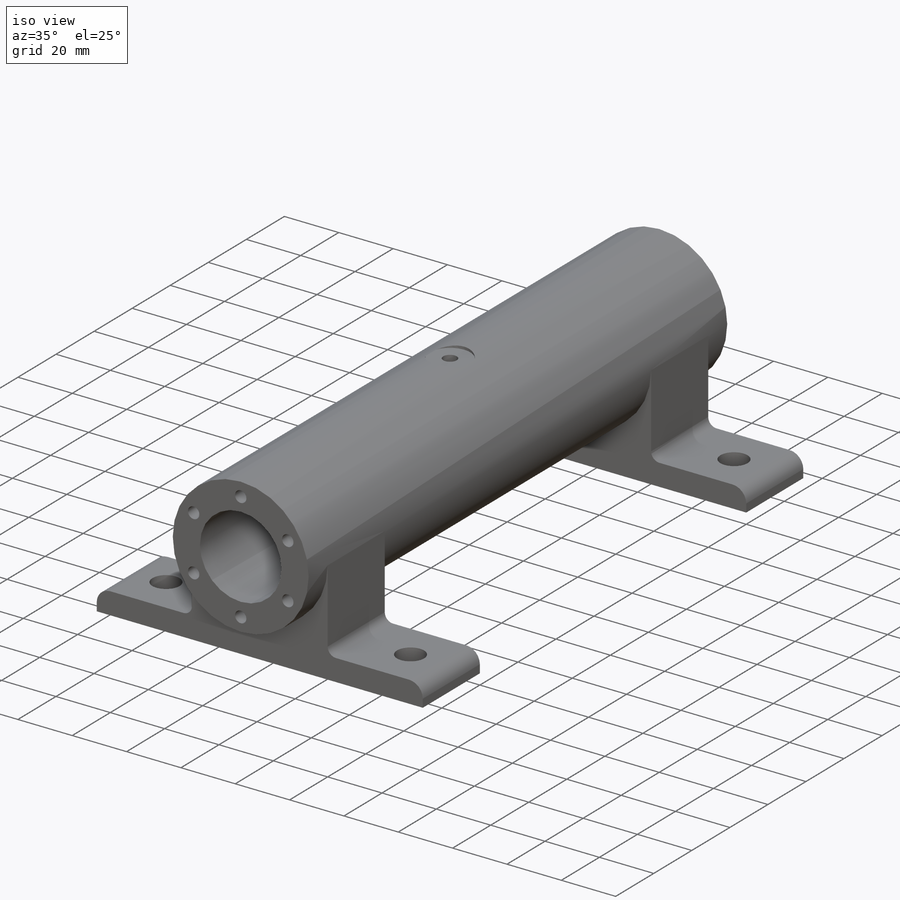
[diagram: iso view]
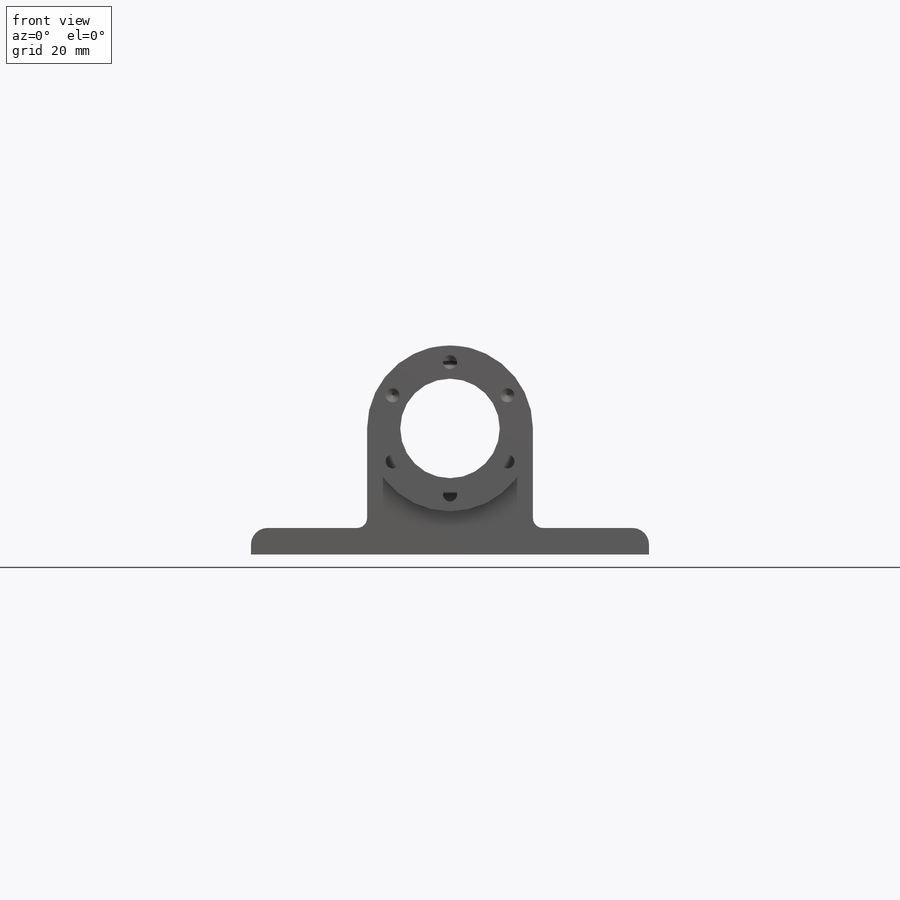
[diagram: front view]
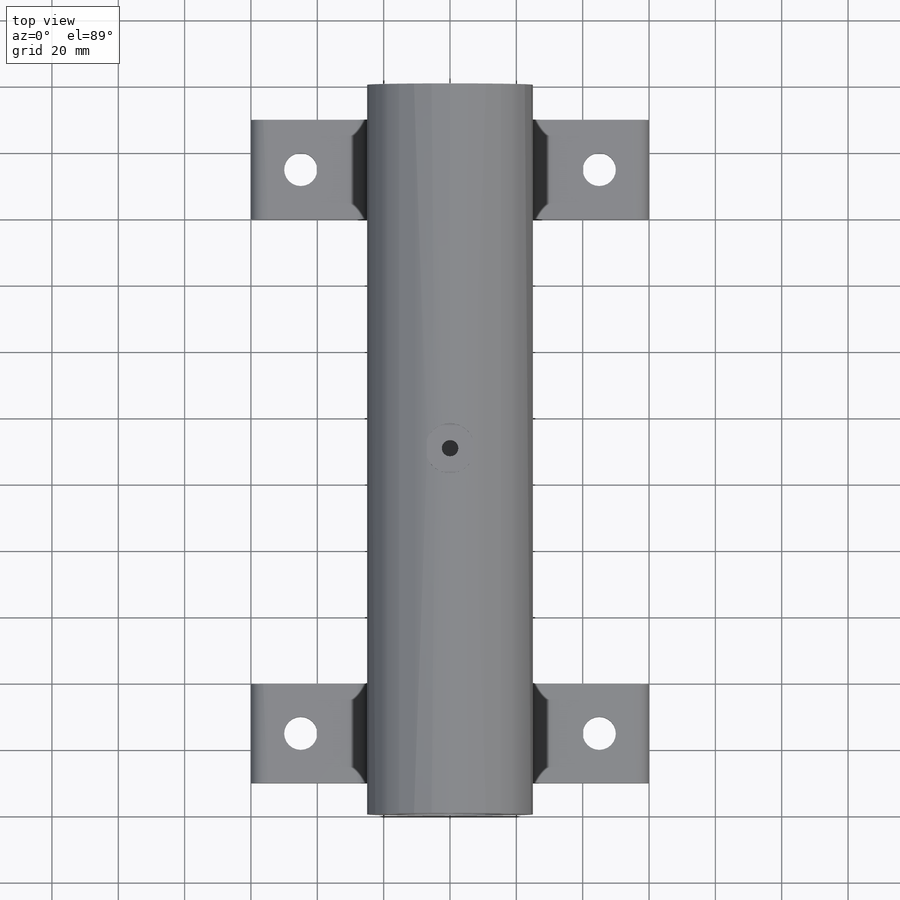
[diagram: top view]
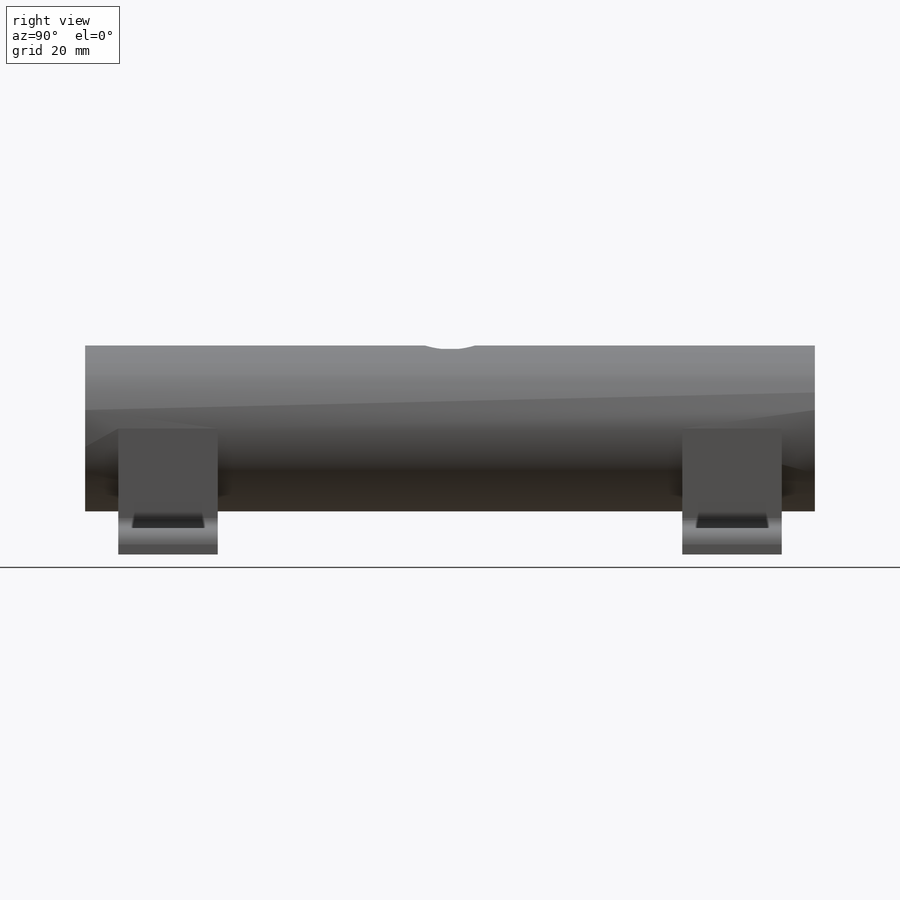
[diagram: right view]
SOLIDWORKS PART (.sldprt)
format: sldprt  version: not decoded by parser v0  size: 519,680 bytes
history: native  units: mm
features: sketch x11, mirror x4, hole x3, cut_extrude x3, extrude x2, pattern_circular x2, plane x2, fillet x2, material x1, thread x1, pattern_linear x1 (+16 scaffold rows collapsed)
feature tree (48):
  scaffold x16  (default folders/planes/origin — collapsed)
  material  "Material <not specified>"
  sketch  "Sketch1"  dims[D1=50.0mm D2=30.0mm]
  extrude  "Boss-Extrude1"  Depth=220mm
  hole  "M5x0.8 Tapped Hole1"  Diameter=4.2mm Depth=14mm
  sketch  "Sketch3"  dims[D1=0.0mm D2=20.0mm]
  sketch  "Sketch2"  dims[hole-wizard template sketch: 50 standard entries collapsed; hole parameters above]
  thread  "Hole Thread1"  Diameter=10mm  [1 undecoded]
  pattern_circular  "CirPattern1"  Count=6 Angle=360deg
  plane  "Plane1"  Offset=110mm
  mirror  "Mirror1"
  plane  "Plane2"  Offset=25mm
  sketch  "Sketch11"  dims[D1=15.0mm]
  cut_extrude  "Cut-Extrude2"  Depth=1mm
  sketch  "Sketch13"  dims[D1=120.0mm D2=30.0mm D3=10.0mm D4=60.0mm]
  extrude  "Boss-Extrude3"  Depth=38mm
  mirror  "Mirror2"
  sketch  "Sketch15"  dims[D1=30.0mm]
  cut_extrude  "Cut-Extrude3"  [1 undecoded]
  sketch  "Sketch16"
  cut_extrude  "Cut-Extrude4"  Depth=38mm
  mirror  "Mirror3"
  mirror  "Mirror4"
  fillet  "Fillet1"  Radius=5mm
  fillet  "Fillet2"  Radius=3mm
  hole  "Ø10.0 (10) Diameter Hole1"  Diameter=10mm Depth=11mm
  sketch  "Sketch20"  dims[D1=15.0mm D2=15.0mm]
  sketch  "Sketch19"  dims[hole-wizard template sketch: 47 standard entries collapsed; hole parameters kept: c15.Hole Depth=11.0mm c15.D3=~14.816244mm c15.Drill Angle=118.0deg]
  hole  "M6x1.0 Tapped Hole1"  Diameter=5mm Depth=17mm
  sketch  "Sketch24"  dims[D1=0.0mm D2=0.0mm]
  sketch  "Sketch25"  dims[hole-wizard template sketch: 47 standard entries collapsed; hole parameters kept: c15.Tap Drill Depth=17.0mm c15.D3=~14.816244mm c15.Drill Angle=118.0deg]
  pattern_circular  "Hole Thread2"  [2 undecoded]
  pattern_linear  "LPattern1"  Count1=2 Count2=2 Spacing1=90mm Spacing2=170mm
decode coverage: 22 of 29 modeling features carry decoded parameters
note: ~ marks probable driven/reference dimensions
note: 4 parameter values undecoded
note: suppression state not decoded; provenance and decode notes live in map.json
